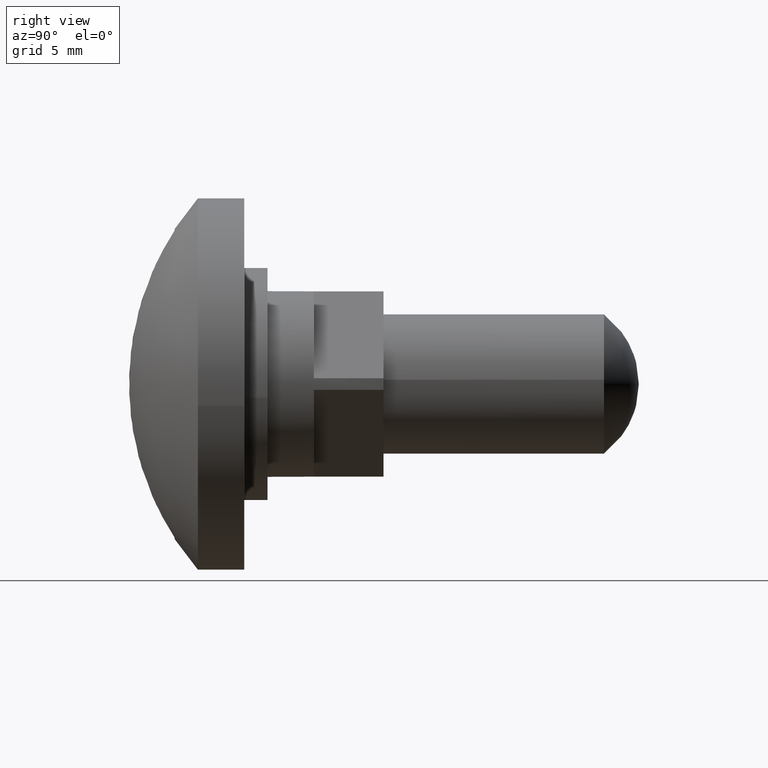
[diagram: clean part render]
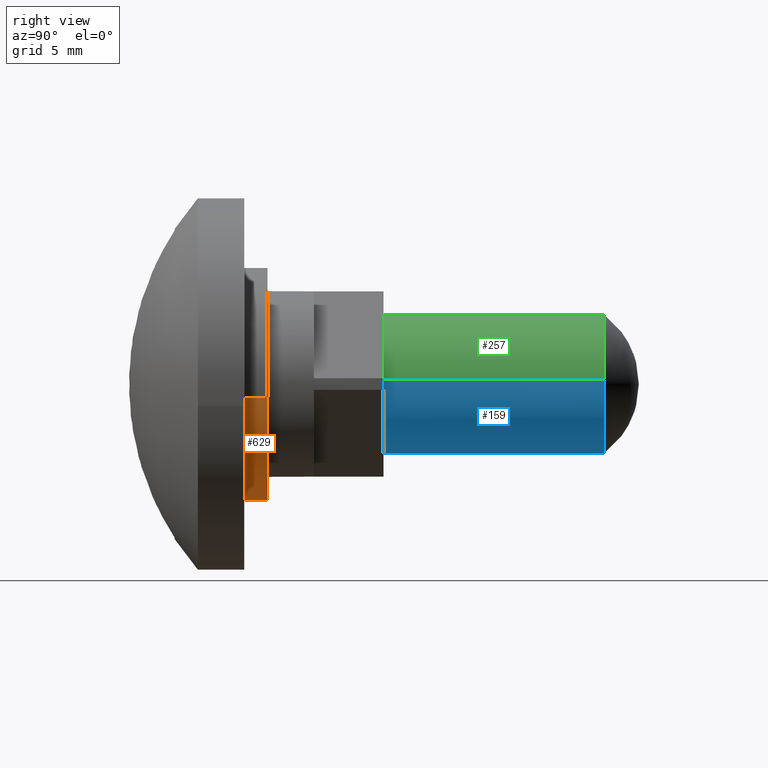
[diagram: same view with three faces highlighted in distinct colors, each labeled with its STEP entity id]
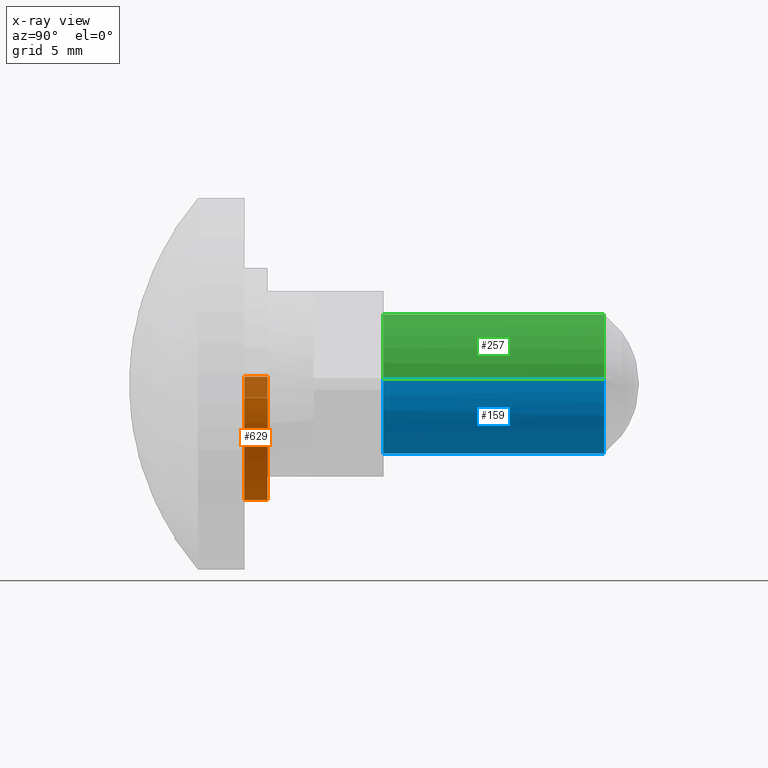
[diagram: x-ray of the same camera — body ghosted, the three highlighted faces saturated]
A machine part, right view with three faces highlighted in distinct colors.
The next image is the same camera in x-ray (body ghosted, the three faces saturated) — at least one of them is partly hidden behind the body in this view.
Their STEP definitions:

[orange] entity #629 — the highlighted face is a freeform B-spline surface patch.
#466=CARTESIAN_POINT('',(4.965047645764781,-2.599990999999905,-0.590171055953764));
#467=VERTEX_POINT('',#466);
#485=CARTESIAN_POINT('',(4.965047645592941,-1.599990999999905,-0.590171057399431));
#486=VERTEX_POINT('',#485);
#487=CARTESIAN_POINT('',(4.965047645592941,-1.599990999999905,-0.590171057399431));
#488=CARTESIAN_POINT('',(4.965047645764781,-2.599990999999905,-0.590171055953764));
#489=QUASI_UNIFORM_CURVE('',1,(#487,#488),.UNSPECIFIED.,.F.,.U.);
#490=EDGE_CURVE('',#486,#467,#489,.T.);
#509=CARTESIAN_POINT('',(-4.990674244921726,-1.599990999999905,0.305238564172029));
#510=VERTEX_POINT('',#509);
#524=CARTESIAN_POINT('',(-4.990674248083044,-2.599991000000020,0.305238512483522));
#525=VERTEX_POINT('',#524);
#526=CARTESIAN_POINT('',(-4.990674244921726,-1.599990999999905,0.305238564172029));
#527=CARTESIAN_POINT('',(-4.990674248083044,-2.599991000000020,0.305238512483522));
#528=QUASI_UNIFORM_CURVE('',1,(#526,#527),.UNSPECIFIED.,.F.,.U.);
#529=EDGE_CURVE('',#510,#525,#528,.T.);
#547=CARTESIAN_POINT('',(-4.990673992109334,-1.574990999999905,0.305242697674284));
#548=CARTESIAN_POINT('',(-5.295916689783620,-1.574990999999905,-4.685431294435050));
#549=CARTESIAN_POINT('',(-0.305242697674285,-1.574990999999905,-4.990673992109334));
#550=CARTESIAN_POINT('',(4.407717454197504,-1.574990999999905,-5.278930983662638));
#551=CARTESIAN_POINT('',(4.965047631818332,-1.574990999999905,-0.590171173283793));
#552=CARTESIAN_POINT('',(-4.990673992109334,-2.625615999999905,0.305242697674284));
#553=CARTESIAN_POINT('',(-5.295916689783620,-2.625615999999905,-4.685431294435050));
#554=CARTESIAN_POINT('',(-0.305242697674285,-2.625615999999905,-4.990673992109334));
#555=CARTESIAN_POINT('',(4.407717454197504,-2.625615999999905,-5.278930983662638));
#556=CARTESIAN_POINT('',(4.965047631818332,-2.625615999999905,-0.590171173283793));
#564=(BOUNDED_SURFACE()B_SPLINE_SURFACE(2,1,((#547,#552),(#548,#553),(#549,#554),(#550,#555),(#551,#556)),.UNSPECIFIED.,.F.,.F.,.U.)B_SPLINE_SURFACE_WITH_KNOTS((3,2,3),(2,2),(0.0,8.284271247461899,16.237171645025320),(0.0,1.0),.UNSPECIFIED.)GEOMETRIC_REPRESENTATION_ITEM()RATIONAL_B_SPLINE_SURFACE(((1.0,1.0),(0.707106781186548,0.707106781186548),(1.0,1.0),(0.718822509939086,0.718822509939086),(0.977505800795127,0.977505800795127)))REPRESENTATION_ITEM('')SURFACE());
#565=CARTESIAN_POINT('',(0.0,-2.599990999999905,-5.000000000000001));
#566=VERTEX_POINT('',#565);
#567=CARTESIAN_POINT('',(0.0,-2.599990999999905,-5.000000000000001));
#568=CARTESIAN_POINT('',(4.440872841120668,-2.599990999999905,-5.0));
#569=CARTESIAN_POINT('',(4.965047645764781,-2.599990999999905,-0.590171055953764));
#577=(BOUNDED_CURVE()B_SPLINE_CURVE(2,(#567,#568,#569),.UNSPECIFIED.,.F.,.U.)B_SPLINE_CURVE_WITH_KNOTS((3,3),(0.0,0.229562481503143),.UNSPECIFIED.)CURVE()GEOMETRIC_REPRESENTATION_ITEM()RATIONAL_B_SPLINE_CURVE((1.0,0.731050823494963,0.956026769843711))REPRESENTATION_ITEM(''));
#578=EDGE_CURVE('',#566,#467,#577,.T.);
#579=ORIENTED_EDGE('',*,*,#578,.F.);
#580=CARTESIAN_POINT('',(-4.990674248083044,-2.599991000000019,0.305238512483522));
#581=CARTESIAN_POINT('',(-5.0,-2.599990999999904,0.152761718030264));
#582=CARTESIAN_POINT('',(-5.0,-2.599990999999905,-7.715016E-016));
#583=CARTESIAN_POINT('',(-5.000000000000001,-2.599990999999905,-5.000000000000002));
#584=CARTESIAN_POINT('',(0.0,-2.599990999999905,-5.000000000000001));
#592=(BOUNDED_CURVE()B_SPLINE_CURVE(2,(#580,#581,#582,#583,#584),.UNSPECIFIED.,.F.,.U.)B_SPLINE_CURVE_WITH_KNOTS((3,2,3),(0.739333106940121,0.750000000000000,1.0),.UNSPECIFIED.)CURVE()GEOMETRIC_REPRESENTATION_ITEM()RATIONAL_B_SPLINE_CURVE((0.976072351789084,0.987502957427813,1.0,0.707106781186548,1.0))REPRESENTATION_ITEM(''));
#593=EDGE_CURVE('',#525,#566,#592,.T.);
#594=ORIENTED_EDGE('',*,*,#593,.F.);
#595=ORIENTED_EDGE('',*,*,#529,.F.);
#596=CARTESIAN_POINT('',(0.0,-1.599990999999905,-5.000000000000001));
#597=VERTEX_POINT('',#596);
#598=CARTESIAN_POINT('',(-4.990674244921727,-1.599990999999905,0.305238564172029));
#599=CARTESIAN_POINT('',(-5.0,-1.599990999999905,0.152761743946979));
#600=CARTESIAN_POINT('',(-5.0,-1.599990999999905,-7.715016E-016));
#601=CARTESIAN_POINT('',(-5.000000000000001,-1.599990999999905,-5.000000000000002));
#602=CARTESIAN_POINT('',(0.0,-1.599990999999905,-5.000000000000001));
#610=(BOUNDED_CURVE()B_SPLINE_CURVE(2,(#598,#599,#600,#601,#602),.UNSPECIFIED.,.F.,.U.)B_SPLINE_CURVE_WITH_KNOTS((3,2,3),(0.739333105153050,0.750000000000000,1.0),.UNSPECIFIED.)CURVE()GEOMETRIC_REPRESENTATION_ITEM()RATIONAL_B_SPLINE_CURVE((0.976072347959046,0.987502955334129,1.0,0.707106781186548,1.0))REPRESENTATION_ITEM(''));
#611=EDGE_CURVE('',#510,#597,#610,.T.);
#612=ORIENTED_EDGE('',*,*,#611,.T.);
#613=CARTESIAN_POINT('',(0.0,-1.599990999999905,-5.000000000000001));
#614=CARTESIAN_POINT('',(4.440872838516377,-1.599990999999905,-5.000000000000001));
#615=CARTESIAN_POINT('',(4.965047645592941,-1.599990999999906,-0.590171057399431));
#623=(BOUNDED_CURVE()B_SPLINE_CURVE(2,(#613,#614,#615),.UNSPECIFIED.,.F.,.U.)B_SPLINE_CURVE_WITH_KNOTS((3,3),(0.0,0.229562481404726),.UNSPECIFIED.)CURVE()GEOMETRIC_REPRESENTATION_ITEM()RATIONAL_B_SPLINE_CURVE((1.0,0.731050823610266,0.956026769650810))REPRESENTATION_ITEM(''));
#624=EDGE_CURVE('',#597,#486,#623,.T.);
#625=ORIENTED_EDGE('',*,*,#624,.T.);
#626=ORIENTED_EDGE('',*,*,#490,.T.);
#627=EDGE_LOOP('',(#579,#594,#595,#612,#625,#626));
#628=FACE_OUTER_BOUND('',#627,.T.);
#629=ADVANCED_FACE('',(#628),#564,.T.);

[blue] entity #159 — the highlighted face is a freeform B-spline surface patch.
#44=CARTESIAN_POINT('',(-2.994404615528195,13.137516400000001,-0.183142017307440));
#45=CARTESIAN_POINT('',(-2.811262598220756,13.137516400000003,-3.177546632835635));
#46=CARTESIAN_POINT('',(0.183142017307439,13.137516400000001,-2.994404615528196));
#47=CARTESIAN_POINT('',(3.177546632835635,13.137516400000003,-2.811262598220757));
#48=CARTESIAN_POINT('',(2.994404615528195,13.137516400000001,0.183142017307438));
#49=CARTESIAN_POINT('',(-2.994404615528195,3.156562089999999,-0.183142017307440));
#50=CARTESIAN_POINT('',(-2.811262598220756,3.156562090000000,-3.177546632835635));
#51=CARTESIAN_POINT('',(0.183142017307439,3.156562090000000,-2.994404615528196));
#52=CARTESIAN_POINT('',(3.177546632835635,3.156562090000000,-2.811262598220757));
#53=CARTESIAN_POINT('',(2.994404615528195,3.156562090000000,0.183142017307438));
#61=(BOUNDED_SURFACE()B_SPLINE_SURFACE(2,1,((#44,#49),(#45,#50),(#46,#51),(#47,#52),(#48,#53)),.UNSPECIFIED.,.F.,.F.,.U.)B_SPLINE_SURFACE_WITH_KNOTS((3,2,3),(2,2),(0.0,4.970562748477139,9.941125496954278),(0.0,9.980954310000005),.UNSPECIFIED.)GEOMETRIC_REPRESENTATION_ITEM()RATIONAL_B_SPLINE_SURFACE(((1.0,1.0),(0.707106781186548,0.707106781186548),(1.0,1.0),(0.707106781186548,0.707106781186548),(1.0,1.0)))REPRESENTATION_ITEM('')SURFACE());
#62=CARTESIAN_POINT('',(-2.994404663263454,12.900015999999720,-0.183141236824116));
#63=VERTEX_POINT('',#62);
#64=CARTESIAN_POINT('',(0.0,12.900016000000001,-3.000000000000001));
#65=VERTEX_POINT('',#64);
#66=CARTESIAN_POINT('',(-2.994404663263454,12.900015999999717,-0.183141236824115));
#67=CARTESIAN_POINT('',(-2.822123075059931,12.900015999999999,-3.000000000000001));
#68=CARTESIAN_POINT('',(0.0,12.900016000000001,-3.000000000000001));
#76=(BOUNDED_CURVE()B_SPLINE_CURVE(2,(#66,#67,#68),.UNSPECIFIED.,.F.,.U.)B_SPLINE_CURVE_WITH_KNOTS((3,3),(0.760666740292436,1.0),.UNSPECIFIED.)CURVE()GEOMETRIC_REPRESENTATION_ITEM()RATIONAL_B_SPLINE_CURVE((0.976072679199428,0.719603644780542,1.0))REPRESENTATION_ITEM(''));
#77=EDGE_CURVE('',#63,#65,#76,.T.);
#78=ORIENTED_EDGE('',*,*,#77,.T.);
#79=CARTESIAN_POINT('',(2.994404663590363,12.900015999999971,0.183141231479039));
#80=VERTEX_POINT('',#79);
#81=CARTESIAN_POINT('',(0.0,12.900016000000001,-3.000000000000001));
#82=CARTESIAN_POINT('',(3.0,12.900016000000001,-3.0));
#83=CARTESIAN_POINT('',(3.0,12.900016000000001,-7.715016E-016));
#84=CARTESIAN_POINT('',(3.000000000000000,12.900016000000006,0.091655696166776));
#85=CARTESIAN_POINT('',(2.994404663590363,12.900015999999978,0.183141231479039));
#93=(BOUNDED_CURVE()B_SPLINE_CURVE(2,(#81,#82,#83,#84,#85),.UNSPECIFIED.,.F.,.U.)B_SPLINE_CURVE_WITH_KNOTS((3,2,3),(0.0,0.250000000000000,0.260666739676436),.UNSPECIFIED.)CURVE()GEOMETRIC_REPRESENTATION_ITEM()RATIONAL_B_SPLINE_CURVE((1.0,0.707106781186548,1.0,0.987503137127694,0.976072680519636))REPRESENTATION_ITEM(''));
#94=EDGE_CURVE('',#65,#80,#93,.T.);
#95=ORIENTED_EDGE('',*,*,#94,.T.);
#96=CARTESIAN_POINT('',(2.994404490119333,3.400000000000000,0.183142009639456));
#97=VERTEX_POINT('',#96);
#98=CARTESIAN_POINT('',(2.994404663590363,12.900015999999971,0.183141231479039));
#99=CARTESIAN_POINT('',(2.994404490119333,3.400000000000000,0.183142009639456));
#100=QUASI_UNIFORM_CURVE('',1,(#98,#99),.UNSPECIFIED.,.F.,.U.);
#101=EDGE_CURVE('',#80,#97,#100,.T.);
#102=ORIENTED_EDGE('',*,*,#101,.T.);
#103=CARTESIAN_POINT('',(2.121322265686895,3.400000000000000,-2.121326234312615));
#104=VERTEX_POINT('',#103);
#105=CARTESIAN_POINT('',(2.994404490119333,3.400000000000000,0.183142009639456));
#106=CARTESIAN_POINT('',(3.000000118683778,3.400000000000000,0.091654769193778));
#107=CARTESIAN_POINT('',(3.000000281437091,3.400000000000000,-0.000003424561802));
#108=CARTESIAN_POINT('',(3.000002487941428,3.400000000000000,-1.242646037817551));
#109=CARTESIAN_POINT('',(2.121322265686895,3.400000000000000,-2.121326234312615));
#117=(BOUNDED_CURVE()B_SPLINE_CURVE(2,(#105,#106,#107,#108,#109),.UNSPECIFIED.,.F.,.U.)B_SPLINE_CURVE_WITH_KNOTS((3,2,3),(0.460322121752614,0.500000000000000,1.0),.UNSPECIFIED.)CURVE()GEOMETRIC_REPRESENTATION_ITEM()RATIONAL_B_SPLINE_CURVE((0.988877489748887,0.993959387499798,1.0,0.923879340743228,1.0))REPRESENTATION_ITEM(''));
#118=EDGE_CURVE('',#97,#104,#117,.T.);
#119=ORIENTED_EDGE('',*,*,#118,.T.);
#120=CARTESIAN_POINT('',(-2.121323301251275,3.400000000000000,-2.121318198730010));
#121=VERTEX_POINT('',#120);
#122=CARTESIAN_POINT('',(2.121322265686895,3.400000000000000,-2.121326234312615));
#123=CARTESIAN_POINT('',(1.242640728038254,3.400000000000000,-3.000004510004441));
#124=CARTESIAN_POINT('',(-0.000001457129662,3.400000000000000,-3.000002156436656));
#125=CARTESIAN_POINT('',(-1.242643642297578,3.400000000000000,-2.999999802868871));
#126=CARTESIAN_POINT('',(-2.121323301251275,3.400000000000000,-2.121318198730010));
#134=(BOUNDED_CURVE()B_SPLINE_CURVE(2,(#122,#123,#124,#125,#126),.UNSPECIFIED.,.F.,.U.)B_SPLINE_CURVE_WITH_KNOTS((3,2,3),(0.0,0.500000000000000,1.0),.UNSPECIFIED.)CURVE()GEOMETRIC_REPRESENTATION_ITEM()RATIONAL_B_SPLINE_CURVE((1.0,0.923879506941981,1.0,0.923879506941981,1.0))REPRESENTATION_ITEM(''));
#135=EDGE_CURVE('',#104,#121,#134,.T.);
#136=ORIENTED_EDGE('',*,*,#135,.T.);
#137=CARTESIAN_POINT('',(-2.994403242990881,3.400000000000000,-0.183142378471797));
#138=VERTEX_POINT('',#137);
#139=CARTESIAN_POINT('',(-2.121323301251275,3.400000000000000,-2.121318198730010));
#140=CARTESIAN_POINT('',(-2.925019260653875,3.400000000000000,-1.317620866015910));
#141=CARTESIAN_POINT('',(-2.994403242990881,3.400000000000001,-0.183142378471797));
#149=(BOUNDED_CURVE()B_SPLINE_CURVE(2,(#139,#140,#141),.UNSPECIFIED.,.F.,.U.)B_SPLINE_CURVE_WITH_KNOTS((3,3),(0.0,0.463120798203553),.UNSPECIFIED.)CURVE()GEOMETRIC_REPRESENTATION_ITEM()RATIONAL_B_SPLINE_CURVE((1.0,0.864355430681329,0.854350503792338))REPRESENTATION_ITEM(''));
#150=EDGE_CURVE('',#121,#138,#149,.T.);
#151=ORIENTED_EDGE('',*,*,#150,.T.);
#152=CARTESIAN_POINT('',(-2.994404663263454,12.900015999999720,-0.183141236824116));
#153=CARTESIAN_POINT('',(-2.994403242990881,3.400000000000000,-0.183142378471797));
#154=QUASI_UNIFORM_CURVE('',1,(#152,#153),.UNSPECIFIED.,.F.,.U.);
#155=EDGE_CURVE('',#63,#138,#154,.T.);
#156=ORIENTED_EDGE('',*,*,#155,.F.);
#157=EDGE_LOOP('',(#78,#95,#102,#119,#136,#151,#156));
#158=FACE_OUTER_BOUND('',#157,.T.);
#159=ADVANCED_FACE('',(#158),#61,.T.);

[green] entity #257 — the highlighted face is a freeform B-spline surface patch.
#62=CARTESIAN_POINT('',(-2.994404663263454,12.900015999999720,-0.183141236824116));
#63=VERTEX_POINT('',#62);
#79=CARTESIAN_POINT('',(2.994404663590363,12.900015999999971,0.183141231479039));
#80=VERTEX_POINT('',#79);
#96=CARTESIAN_POINT('',(2.994404490119333,3.400000000000000,0.183142009639456));
#97=VERTEX_POINT('',#96);
#98=CARTESIAN_POINT('',(2.994404663590363,12.900015999999971,0.183141231479039));
#99=CARTESIAN_POINT('',(2.994404490119333,3.400000000000000,0.183142009639456));
#100=QUASI_UNIFORM_CURVE('',1,(#98,#99),.UNSPECIFIED.,.F.,.U.);
#101=EDGE_CURVE('',#80,#97,#100,.T.);
#137=CARTESIAN_POINT('',(-2.994403242990881,3.400000000000000,-0.183142378471797));
#138=VERTEX_POINT('',#137);
#152=CARTESIAN_POINT('',(-2.994404663263454,12.900015999999720,-0.183141236824116));
#153=CARTESIAN_POINT('',(-2.994403242990881,3.400000000000000,-0.183142378471797));
#154=QUASI_UNIFORM_CURVE('',1,(#152,#153),.UNSPECIFIED.,.F.,.U.);
#155=EDGE_CURVE('',#63,#138,#154,.T.);
#160=CARTESIAN_POINT('',(2.994404615528195,13.137516400000001,0.183142017307438));
#161=CARTESIAN_POINT('',(2.811262598220756,13.137516400000003,3.177546632835633));
#162=CARTESIAN_POINT('',(-0.183142017307439,13.137516400000001,2.994404615528194));
#163=CARTESIAN_POINT('',(-3.177546632835635,13.137516400000003,2.811262598220754));
#164=CARTESIAN_POINT('',(-2.994404615528195,13.137516400000001,-0.183142017307440));
#165=CARTESIAN_POINT('',(2.994404615528195,3.156562090000000,0.183142017307438));
#166=CARTESIAN_POINT('',(2.811262598220756,3.156562090000000,3.177546632835633));
#167=CARTESIAN_POINT('',(-0.183142017307439,3.156562090000000,2.994404615528194));
#168=CARTESIAN_POINT('',(-3.177546632835635,3.156562090000000,2.811262598220754));
#169=CARTESIAN_POINT('',(-2.994404615528195,3.156562089999999,-0.183142017307440));
#177=(BOUNDED_SURFACE()B_SPLINE_SURFACE(2,1,((#160,#165),(#161,#166),(#162,#167),(#163,#168),(#164,#169)),.UNSPECIFIED.,.F.,.F.,.U.)B_SPLINE_SURFACE_WITH_KNOTS((3,2,3),(2,2),(0.0,4.970562748477139,9.941125496954278),(0.0,9.980954310000005),.UNSPECIFIED.)GEOMETRIC_REPRESENTATION_ITEM()RATIONAL_B_SPLINE_SURFACE(((1.0,1.0),(0.707106781186548,0.707106781186548),(1.0,1.0),(0.707106781186548,0.707106781186548),(1.0,1.0)))REPRESENTATION_ITEM('')SURFACE());
#178=CARTESIAN_POINT('',(0.0,12.900016000000001,2.999999999999999));
#179=VERTEX_POINT('',#178);
#180=CARTESIAN_POINT('',(0.0,12.900016000000001,2.999999999999999));
#181=CARTESIAN_POINT('',(-3.0,12.900016000000001,2.999999999999999));
#182=CARTESIAN_POINT('',(-3.0,12.900016000000001,-7.715016E-016));
#183=CARTESIAN_POINT('',(-3.000000000000000,12.900016000000004,-0.091655701526847));
#184=CARTESIAN_POINT('',(-2.994404663263455,12.900015999999715,-0.183141236824115));
#192=(BOUNDED_CURVE()B_SPLINE_CURVE(2,(#180,#181,#182,#183,#184),.UNSPECIFIED.,.F.,.U.)B_SPLINE_CURVE_WITH_KNOTS((3,2,3),(0.500000000000000,0.750000000000000,0.760666740292437),.UNSPECIFIED.)CURVE()GEOMETRIC_REPRESENTATION_ITEM()RATIONAL_B_SPLINE_CURVE((1.0,0.707106781186548,1.0,0.987503136406004,0.976072679199426))REPRESENTATION_ITEM(''));
#193=EDGE_CURVE('',#179,#63,#192,.T.);
#194=ORIENTED_EDGE('',*,*,#193,.T.);
#195=ORIENTED_EDGE('',*,*,#155,.T.);
#196=CARTESIAN_POINT('',(-2.121315767779515,3.400000000000000,2.121311232219955));
#197=VERTEX_POINT('',#196);
#198=CARTESIAN_POINT('',(-2.994403242990881,3.400000000000001,-0.183142378471797));
#199=CARTESIAN_POINT('',(-3.076897983283088,3.400000000000000,1.165730687957038));
#200=CARTESIAN_POINT('',(-2.121315767779515,3.400000000000000,2.121311232219955));
#208=(BOUNDED_CURVE()B_SPLINE_CURVE(2,(#198,#199,#200),.UNSPECIFIED.,.F.,.U.)B_SPLINE_CURVE_WITH_KNOTS((3,3),(0.463120798203553,1.0),.UNSPECIFIED.)CURVE()GEOMETRIC_REPRESENTATION_ITEM()RATIONAL_B_SPLINE_CURVE((0.854350503792338,0.842752153679302,1.0))REPRESENTATION_ITEM(''));
#209=EDGE_CURVE('',#138,#197,#208,.T.);
#210=ORIENTED_EDGE('',*,*,#209,.T.);
#211=CARTESIAN_POINT('',(2.121314732212985,3.400000000000000,2.121319267770345));
#212=VERTEX_POINT('',#211);
#213=CARTESIAN_POINT('',(-2.121315767779515,3.400000000000000,2.121311232219955));
#214=CARTESIAN_POINT('',(-1.242639160509952,3.400000000000000,2.999992552879207));
#215=CARTESIAN_POINT('',(-0.000001457130434,3.400000000000000,2.999994906437426));
#216=CARTESIAN_POINT('',(1.242636246249084,3.400000000000000,2.999997259995644));
#217=CARTESIAN_POINT('',(2.121314732212985,3.400000000000000,2.121319267770345));
#225=(BOUNDED_CURVE()B_SPLINE_CURVE(2,(#213,#214,#215,#216,#217),.UNSPECIFIED.,.F.,.U.)B_SPLINE_CURVE_WITH_KNOTS((3,2,3),(0.0,0.500000000000000,1.0),.UNSPECIFIED.)CURVE()GEOMETRIC_REPRESENTATION_ITEM()RATIONAL_B_SPLINE_CURVE((1.0,0.923879532511069,1.0,0.923879532511069,1.0))REPRESENTATION_ITEM(''));
#226=EDGE_CURVE('',#197,#212,#225,.T.);
#227=ORIENTED_EDGE('',*,*,#226,.T.);
#228=CARTESIAN_POINT('',(2.121314732212985,3.400000000000000,2.121319267770345));
#229=CARTESIAN_POINT('',(2.925014651749199,3.400000000000000,1.317622333370854));
#230=CARTESIAN_POINT('',(2.994404490119333,3.400000000000000,0.183142009639456));
#238=(BOUNDED_CURVE()B_SPLINE_CURVE(2,(#228,#229,#230),.UNSPECIFIED.,.F.,.U.)B_SPLINE_CURVE_WITH_KNOTS((3,3),(0.0,0.460322121752614),.UNSPECIFIED.)CURVE()GEOMETRIC_REPRESENTATION_ITEM()RATIONAL_B_SPLINE_CURVE((1.0,0.929919953243430,0.988877489748887))REPRESENTATION_ITEM(''));
#239=EDGE_CURVE('',#212,#97,#238,.T.);
#240=ORIENTED_EDGE('',*,*,#239,.T.);
#241=ORIENTED_EDGE('',*,*,#101,.F.);
#242=CARTESIAN_POINT('',(2.994404663590363,12.900015999999978,0.183141231479039));
#243=CARTESIAN_POINT('',(2.822123085153854,12.900015999999999,2.999999999999998));
#244=CARTESIAN_POINT('',(0.0,12.900016000000001,2.999999999999999));
#252=(BOUNDED_CURVE()B_SPLINE_CURVE(2,(#242,#243,#244),.UNSPECIFIED.,.F.,.U.)B_SPLINE_CURVE_WITH_KNOTS((3,3),(0.260666739676436,0.500000000000000),.UNSPECIFIED.)CURVE()GEOMETRIC_REPRESENTATION_ITEM()RATIONAL_B_SPLINE_CURVE((0.976072680519636,0.719603644058854,1.0))REPRESENTATION_ITEM(''));
#253=EDGE_CURVE('',#80,#179,#252,.T.);
#254=ORIENTED_EDGE('',*,*,#253,.T.);
#255=EDGE_LOOP('',(#194,#195,#210,#227,#240,#241,#254));
#256=FACE_OUTER_BOUND('',#255,.T.);
#257=ADVANCED_FACE('',(#256),#177,.T.);